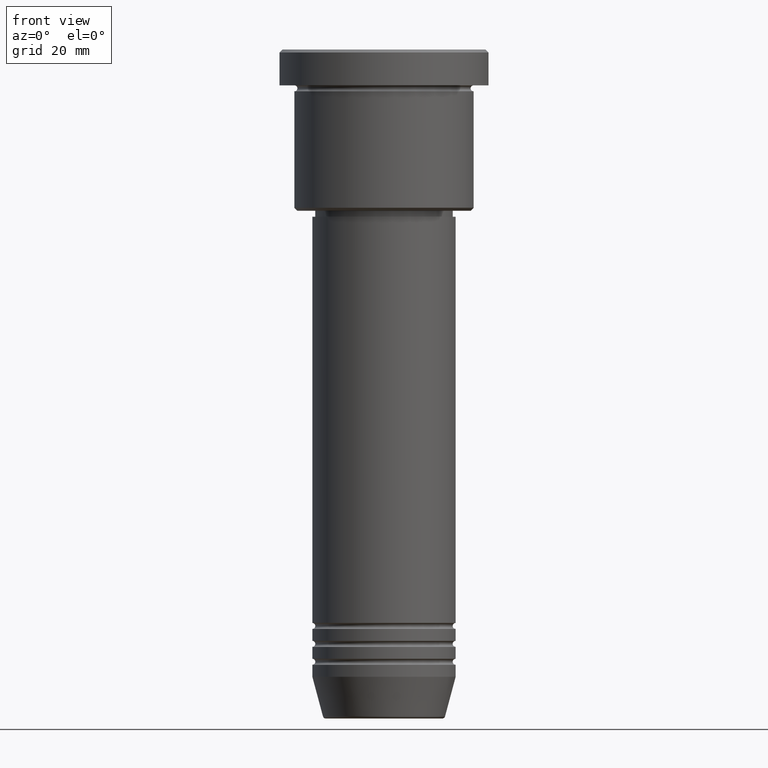
[diagram: clean part render]
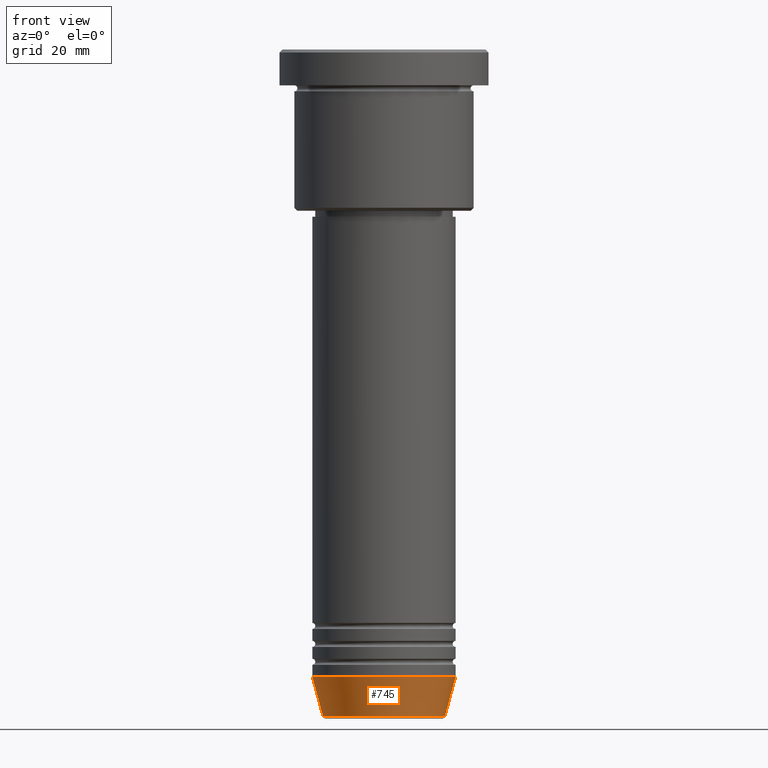
[diagram: same view with one face highlighted and labeled with its STEP entity id]
A machine part, front view. The second image highlights one B-rep face of the part: STEP entity #745.
In plain terms, the highlighted conical surface has half-angle 15 deg.
Its self-contained STEP definition (entity closure, byte-faithful):
#22 = VERTEX_POINT ( 'NONE', #1052 ) ;
#36 = AXIS2_PLACEMENT_3D ( 'NONE', #314, #223, #969 ) ;
#82 = EDGE_CURVE ( 'NONE', #656, #1051, #1169, .T. ) ;
#142 = CIRCLE ( 'NONE', #310, 10.22365507213719305 ) ;
#210 = CONICAL_SURFACE ( 'NONE', #848, 12.00000000000000000, 0.2617993877991500740 ) ;
#213 = DIRECTION ( 'NONE',  ( -0.2588190451025213501, 3.169619151431772337E-17, 0.9659258262890680902 ) ) ;
#223 = DIRECTION ( 'NONE',  ( -0.000000000000000000, -0.000000000000000000, 1.000000000000000000 ) ) ;
#231 = CARTESIAN_POINT ( 'NONE',  ( -10.22365507213719305, 1.360806402472382744E-15, -111.6294095225512706 ) ) ;
#252 = DIRECTION ( 'NONE',  ( 0.2588190451025213501, 0.000000000000000000, 0.9659258262890680902 ) ) ;
#272 = FACE_OUTER_BOUND ( 'NONE', #346, .T. ) ;
#310 = AXIS2_PLACEMENT_3D ( 'NONE', #595, #328, #1069 ) ;
#314 = CARTESIAN_POINT ( 'NONE',  ( 0.000000000000000000, 0.000000000000000000, -105.0000000000000142 ) ) ;
#328 = DIRECTION ( 'NONE',  ( -0.000000000000000000, -0.000000000000000000, 1.000000000000000000 ) ) ;
#346 = EDGE_LOOP ( 'NONE', ( #784, #905, #667, #1089 ) ) ;
#351 = CIRCLE ( 'NONE', #36, 12.00000000000000000 ) ;
#364 = CARTESIAN_POINT ( 'NONE',  ( 0.000000000000000000, 0.000000000000000000, -105.0000000000000142 ) ) ;
#371 = EDGE_CURVE ( 'NONE', #22, #1051, #351, .T. ) ;
#380 = EDGE_CURVE ( 'NONE', #891, #656, #142, .T. ) ;
#471 = CARTESIAN_POINT ( 'NONE',  ( 10.22365507213719305, 0.000000000000000000, -111.6294095225512706 ) ) ;
#595 = CARTESIAN_POINT ( 'NONE',  ( 0.000000000000000000, 0.000000000000000000, -111.6294095225512706 ) ) ;
#638 = CARTESIAN_POINT ( 'NONE',  ( 12.00000000000000000, 0.000000000000000000, -105.0000000000000142 ) ) ;
#656 = VERTEX_POINT ( 'NONE', #471 ) ;
#667 = ORIENTED_EDGE ( 'NONE', *, *, #82, .T. ) ;
#679 = CARTESIAN_POINT ( 'NONE',  ( -12.00000000000000000, 1.469576158976823947E-15, -105.0000000000000142 ) ) ;
#745 = ADVANCED_FACE ( 'NONE', ( #272 ), #210, .T. ) ;
#784 = ORIENTED_EDGE ( 'NONE', *, *, #910, .F. ) ;
#848 = AXIS2_PLACEMENT_3D ( 'NONE', #364, #1016, #849 ) ;
#849 = DIRECTION ( 'NONE',  ( 1.000000000000000000, 0.000000000000000000, 0.000000000000000000 ) ) ;
#891 = VERTEX_POINT ( 'NONE', #231 ) ;
#905 = ORIENTED_EDGE ( 'NONE', *, *, #380, .T. ) ;
#910 = EDGE_CURVE ( 'NONE', #891, #22, #1040, .T. ) ;
#969 = DIRECTION ( 'NONE',  ( 1.000000000000000000, 0.000000000000000000, 0.000000000000000000 ) ) ;
#982 = VECTOR ( 'NONE', #252, 1000.000000000000000 ) ;
#1016 = DIRECTION ( 'NONE',  ( -0.000000000000000000, -0.000000000000000000, 1.000000000000000000 ) ) ;
#1040 = LINE ( 'NONE', #679, #1174 ) ;
#1051 = VERTEX_POINT ( 'NONE', #638 ) ;
#1052 = CARTESIAN_POINT ( 'NONE',  ( -12.00000000000000000, 1.469576158976823947E-15, -105.0000000000000142 ) ) ;
#1069 = DIRECTION ( 'NONE',  ( 1.000000000000000000, 0.000000000000000000, 0.000000000000000000 ) ) ;
#1087 = CARTESIAN_POINT ( 'NONE',  ( 12.00000000000000000, 0.000000000000000000, -105.0000000000000142 ) ) ;
#1089 = ORIENTED_EDGE ( 'NONE', *, *, #371, .F. ) ;
#1169 = LINE ( 'NONE', #1087, #982 ) ;
#1174 = VECTOR ( 'NONE', #213, 1000.000000000000000 ) ;